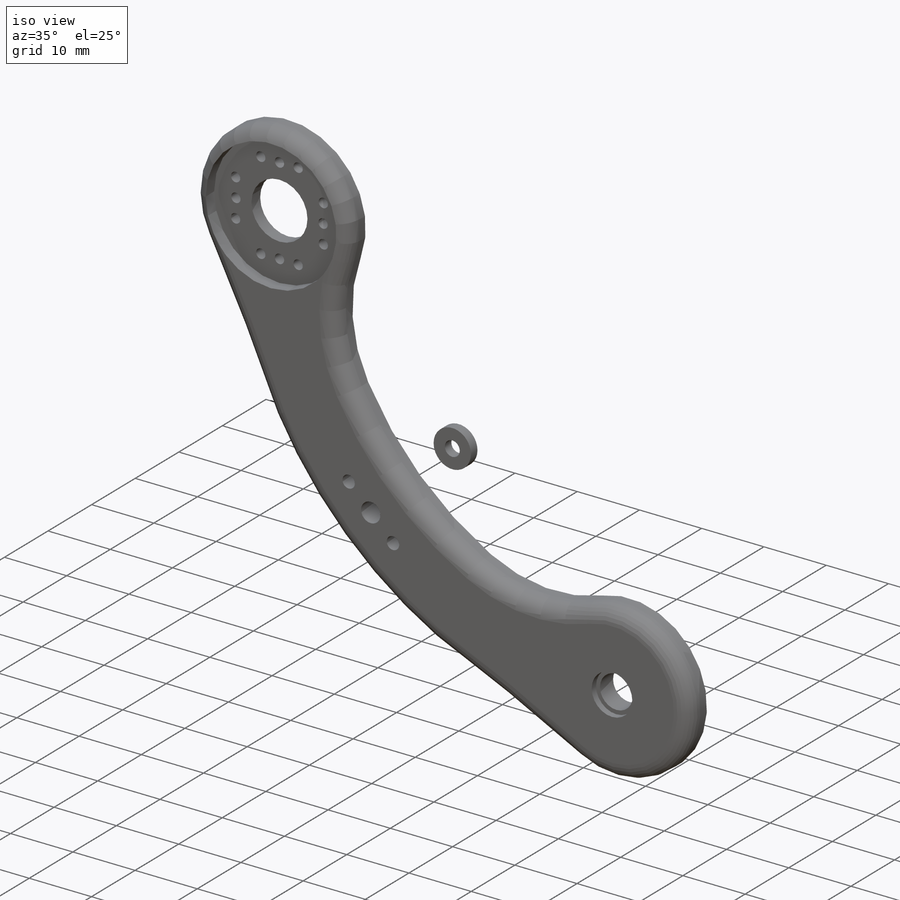
[diagram: iso view]
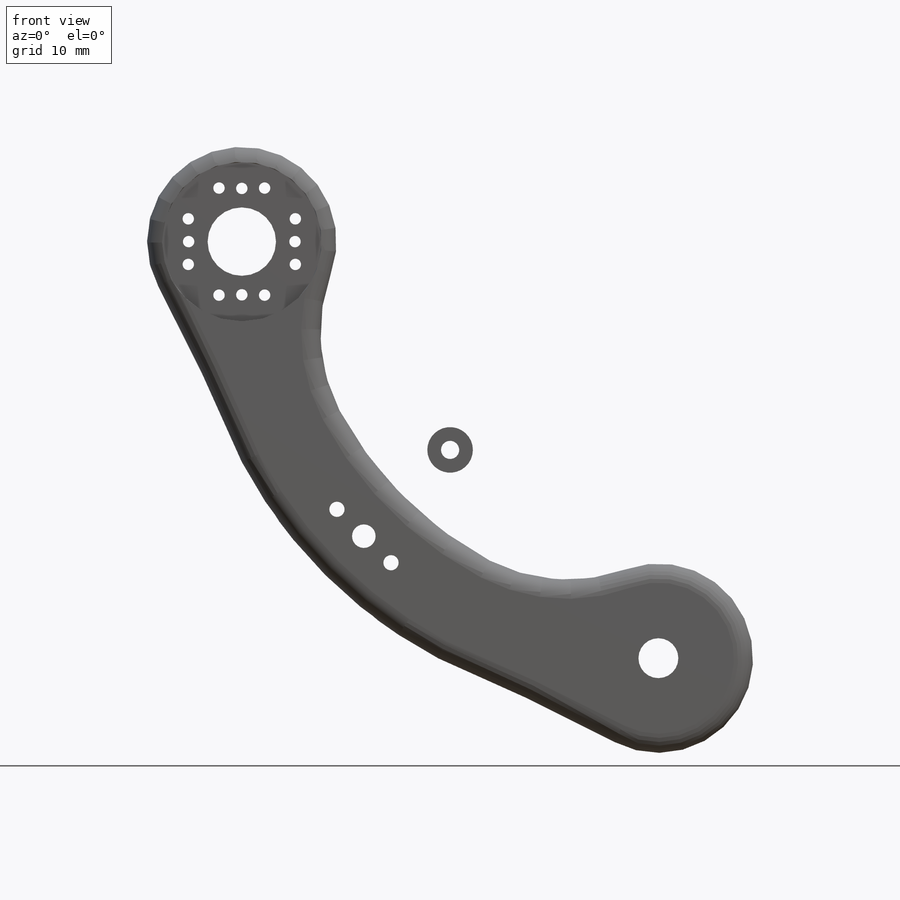
[diagram: front view]
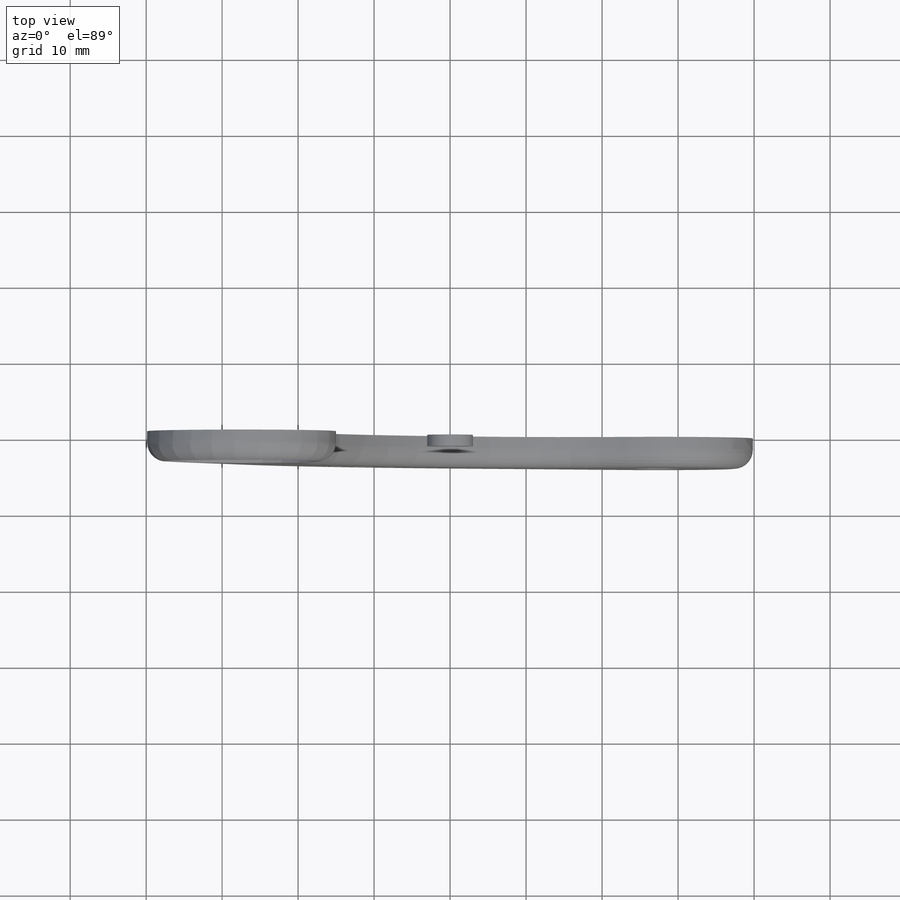
[diagram: top view]
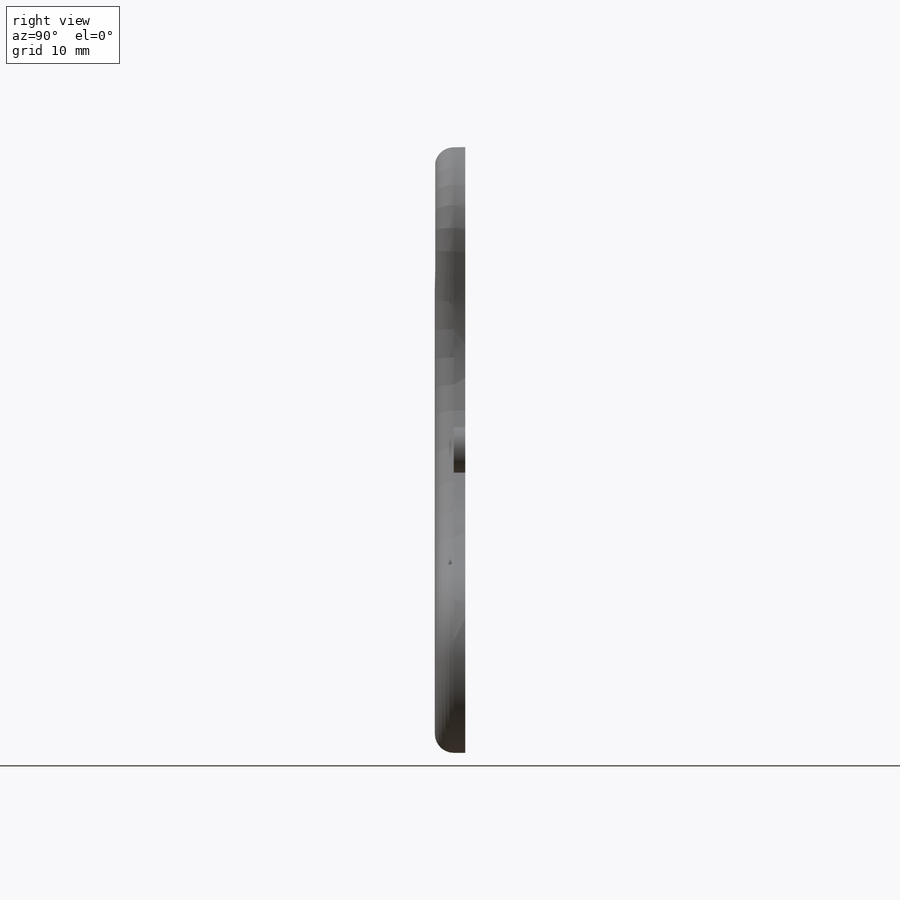
[diagram: right view]
SOLIDWORKS PART (.sldprt)
format: sldprt  version: not decoded by parser v0  size: 321,024 bytes
history: native  units: mm
features: sketch x5, plane x3, cut_extrude x3, extrude x2, material x1, fillet x1 (+10 scaffold rows collapsed)
feature tree (25):
  scaffold x10  (default folders/planes/origin — collapsed)
  material  "Material <sin especificar>"
  plane  "Alzado"
  plane  "Planta"
  plane  "Vista lateral"
  sketch  "Croquis1"  dims[c1.D1=97.2mm c1.D3=48.6mm c2.D1=~1.248042mm c2.D3=~0.484531mm c3.D1=~7.968542mm c3.D2=~7.431458mm c4.D1=5.0mm c4.D2=5.0mm]
  extrude  "Base Soporte"  Depth=4mm
  fillet  "Redondeo contorno"  Radius=2.5mm
  sketch  "Croquis2"  dims[D1=~9.497995mm]
  cut_extrude  "Caja Horn circular"  Depth=2mm
  sketch  "Croquis3"  dims[D1=3.0mm D2=3.0mm D3=4.0]
  cut_extrude  "Taladros Horn"  [1 undecoded]
  sketch  "Croquis4"
  cut_extrude  "Encaje Trasera servo"  Depth=1mm
  sketch  "Croquis5"  dims[D1=~1.554595mm]
  extrude  "Arandela de cierre"  Depth=1.5mm
decode coverage: 9 of 11 modeling features carry decoded parameters
note: ~ marks probable driven/reference dimensions
note: 1 parameter value undecoded
note: suppression state not decoded; provenance and decode notes live in map.json
